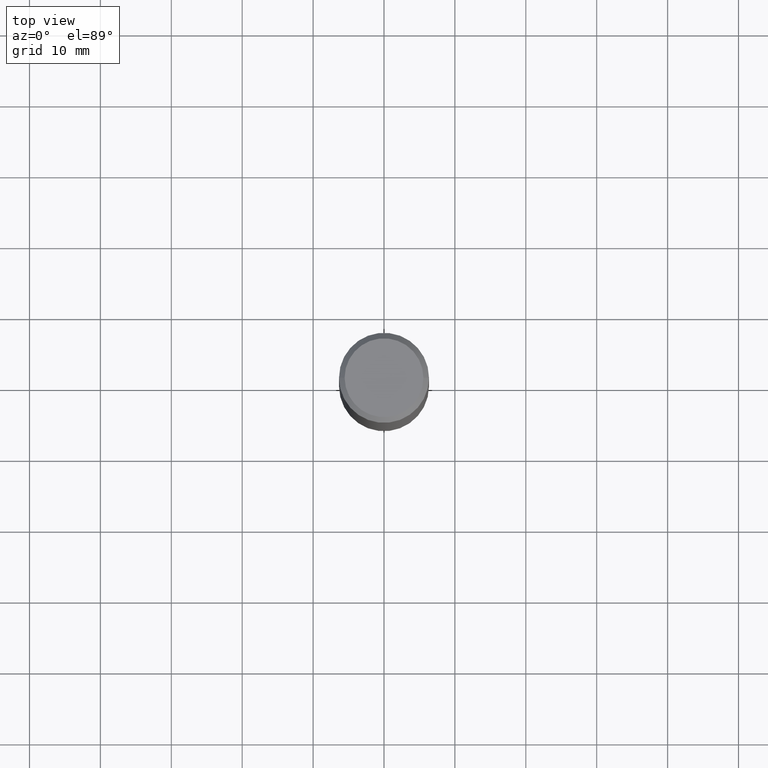
[diagram: clean part render]
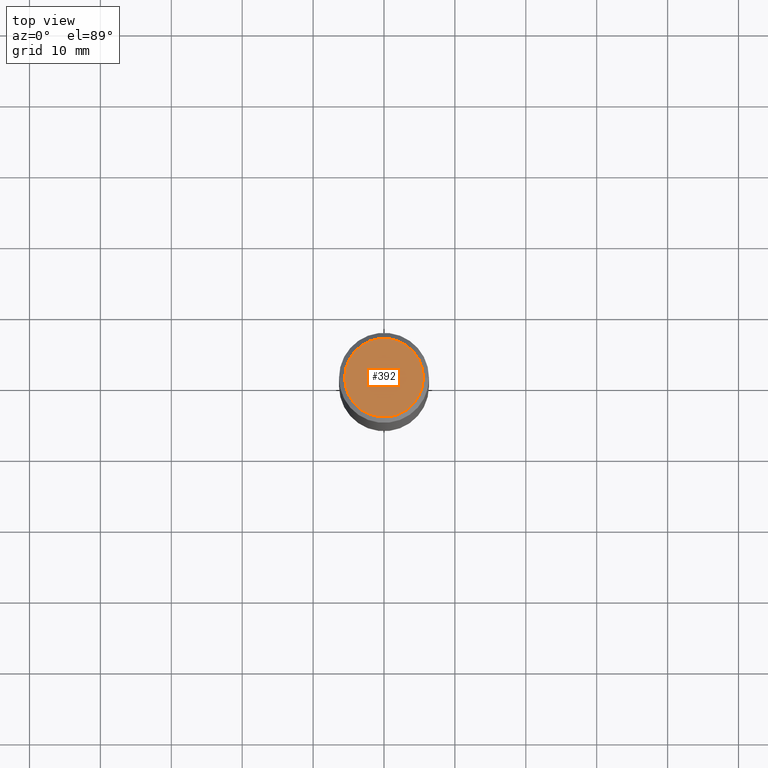
[diagram: same view with one face highlighted and labeled with its STEP entity id]
A machine part, top view. The second image highlights one B-rep face of the part: STEP entity #392.
In plain terms, the highlighted planar face has unit normal (0, -0, -1).
Its self-contained STEP definition (entity closure, byte-faithful):
#26 = DIRECTION ( 'NONE',  ( -2.445468806185136597E-29, 3.491481338843145583E-15, 1.000000000000000000 ) ) ;
#39 = AXIS2_PLACEMENT_3D ( 'NONE', #275, #26, #60 ) ;
#60 = DIRECTION ( 'NONE',  ( 1.000000000000000000, -6.982962677686266711E-15, 4.880466792705917400E-29 ) ) ;
#86 = EDGE_CURVE ( 'NONE', #234, #276, #172, .T. ) ;
#89 = AXIS2_PLACEMENT_3D ( 'NONE', #264, #94, #162 ) ;
#94 = DIRECTION ( 'NONE',  ( -2.445468806185136597E-29, 3.491481338843145583E-15, 1.000000000000000000 ) ) ;
#103 = DIRECTION ( 'NONE',  ( 2.438088387897960049E-29, -3.491481338843145188E-15, -1.000000000000000000 ) ) ;
#119 = CARTESIAN_POINT ( 'NONE',  ( -0.2187500000000002220, 1.582077481663294407E-15, -4.650643080404282152E-16 ) ) ;
#143 = CARTESIAN_POINT ( 'NONE',  ( 5.686501290914580814E-45, -8.118816764425588283E-31, -2.325321540202086842E-16 ) ) ;
#152 = ORIENTED_EDGE ( 'NONE', *, *, #86, .T. ) ;
#162 = DIRECTION ( 'NONE',  ( 1.000000000000000000, -6.982962677686266711E-15, 4.880466792705917400E-29 ) ) ;
#168 = DIRECTION ( 'NONE',  ( -1.000000000000000000, 6.982962677686265922E-15, -4.876176775795935793E-29 ) ) ;
#172 = CIRCLE ( 'NONE', #39, 0.2187500000000002220 ) ;
#225 = EDGE_LOOP ( 'NONE', ( #152, #386 ) ) ;
#234 = VERTEX_POINT ( 'NONE', #119 ) ;
#264 = CARTESIAN_POINT ( 'NONE',  ( 1.137300258182916163E-44, -1.623763352885117657E-30, -4.650643080404173684E-16 ) ) ;
#275 = CARTESIAN_POINT ( 'NONE',  ( 1.137300258182916163E-44, -1.623763352885117657E-30, -4.650643080404173684E-16 ) ) ;
#276 = VERTEX_POINT ( 'NONE', #335 ) ;
#330 = AXIS2_PLACEMENT_3D ( 'NONE', #143, #103, #168 ) ;
#332 = EDGE_CURVE ( 'NONE', #276, #234, #387, .T. ) ;
#335 = CARTESIAN_POINT ( 'NONE',  ( 0.2187500000000002220, -1.662483614147128641E-15, -4.650643080404062258E-16 ) ) ;
#352 = FACE_OUTER_BOUND ( 'NONE', #225, .T. ) ;
#386 = ORIENTED_EDGE ( 'NONE', *, *, #332, .T. ) ;
#387 = CIRCLE ( 'NONE', #89, 0.2187500000000002220 ) ;
#392 = ADVANCED_FACE ( 'NONE', ( #352 ), #416, .F. ) ;
#416 = PLANE ( 'NONE',  #330 ) ;